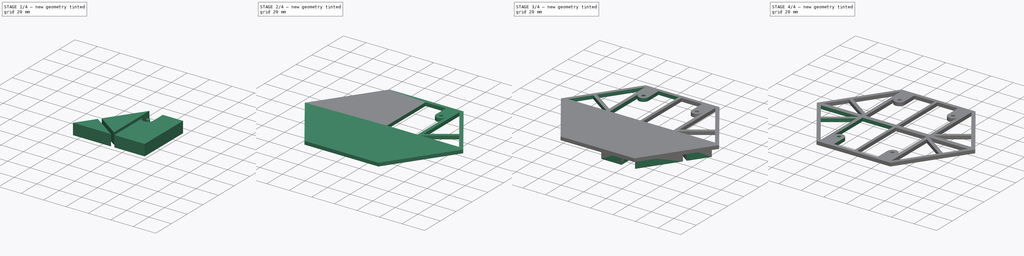
[diagram: build sequence overview — one tinted view per stage of 4, left to right]
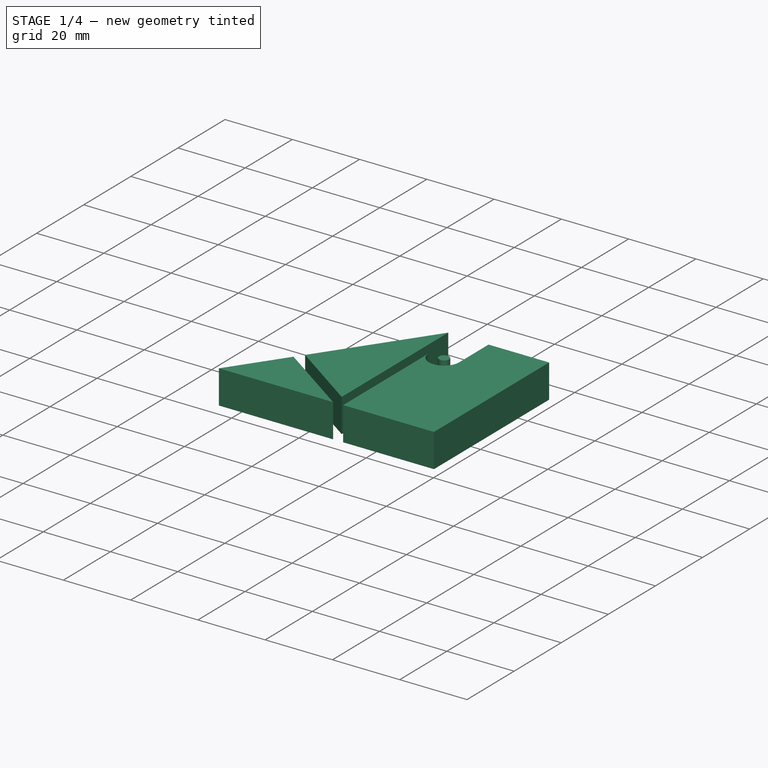
[diagram: stage 1 of 4 — iso view after this stage's code; geometry added in this stage tinted green]
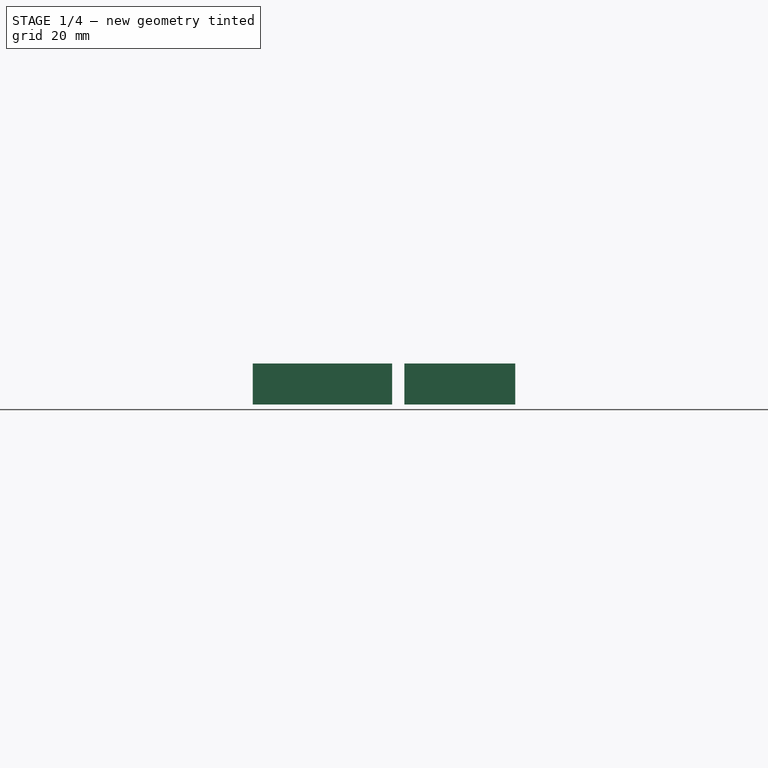
[diagram: stage 1 of 4 — front view after this stage's code; geometry added in this stage tinted green]
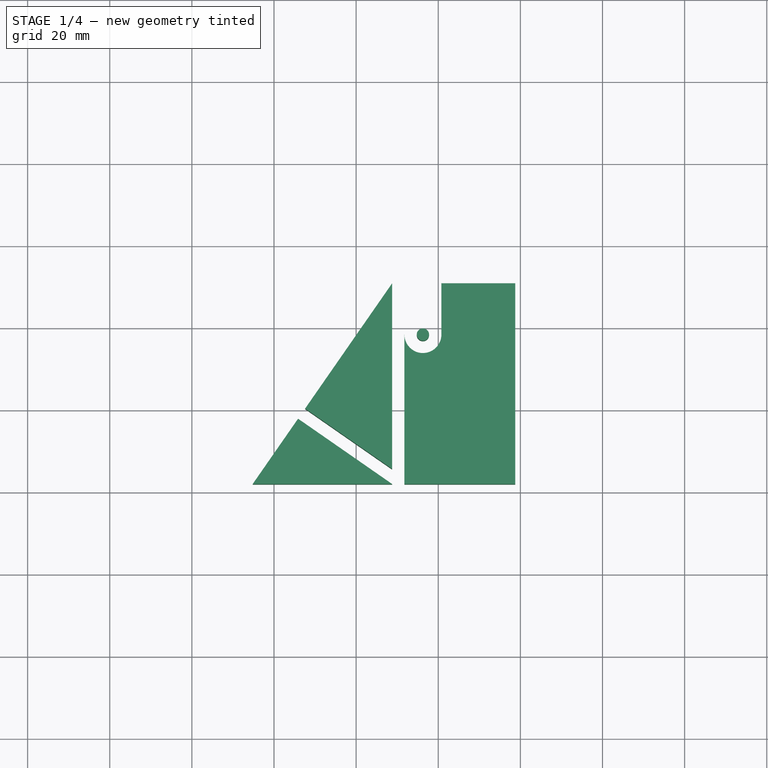
[diagram: stage 1 of 4 — top view after this stage's code; geometry added in this stage tinted green]
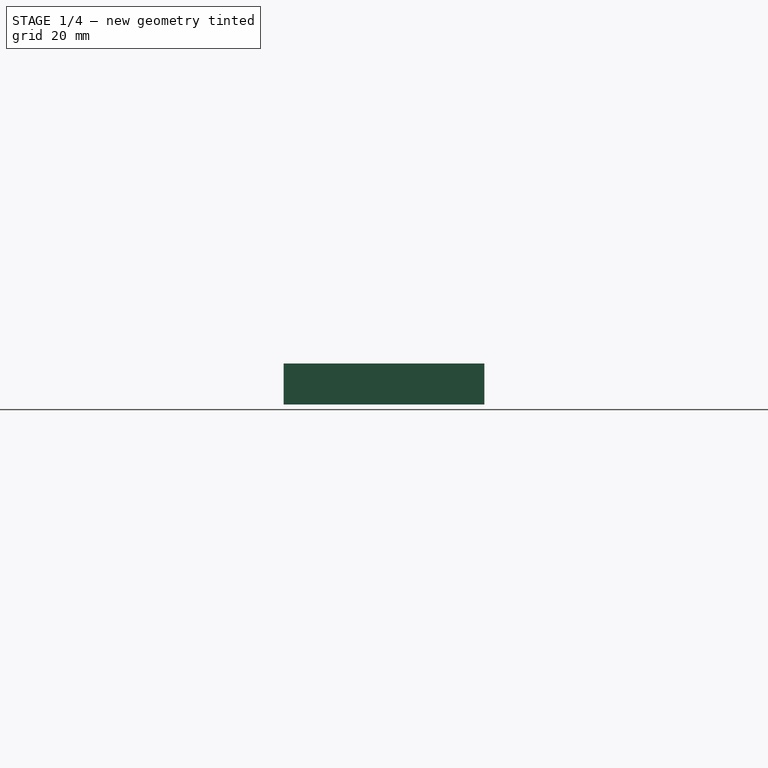
[diagram: stage 1 of 4 — right view after this stage's code; geometry added in this stage tinted green]
FCSTD DOCUMENT  (FreeCAD 0.17R13541 (Git))
Label: rubber_suspension
License: All rights reserved
LicenseURL: http://en.wikipedia.org/wiki/All_rights_reserved
objects: Part::Cut×4, Part::Mirroring×3, Sketcher::SketchObject×2, Part::Extrusion×2, Spreadsheet::Sheet×1
note: 11 computed .brp shape members not serialized (recipe doc carries the construction recipe); baked Part::Feature solids carry a one-line shape summary decoded from their .brp

FEATURE [Sketcher::SketchObject] Sketch
  expr: Constraints[15] = Spreadsheet.triangle_side
  sketch-geometry (6):
    g0: LineSegment StartX=-32.8 StartY=53.88 StartZ=0 EndX=32.8 EndY=53.88 EndZ=0
    g1: LineSegment StartX=-32.8 StartY=-53.88 StartZ=0 EndX=32.8 EndY=-53.88 EndZ=0
    g2: LineSegment StartX=-32.8 StartY=53.88 StartZ=0 EndX=-70.2207 EndY=0 EndZ=0
    g3: LineSegment StartX=-32.8 StartY=-53.88 StartZ=0 EndX=-70.2207 EndY=0 EndZ=0
    g4: LineSegment StartX=32.8 StartY=-53.88 StartZ=0 EndX=70.2207 EndY=0 EndZ=0
    g5: LineSegment StartX=32.8 StartY=53.88 StartZ=0 EndX=70.2207 EndY=0 EndZ=0
  constraints (18):
    c: Horizontal(g0)
    c: Horizontal(g1)
    c: Coincident(g2,g0)
    c: Coincident(g3,g1)
    c: Coincident(g3,g2)
    c: Coincident(g4,g1)
    c: Coincident(g5,g0)
    c: Coincident(g5,g4)
    c: Equal(g1,g3)
    c: Equal(g3,g2)
    c: Equal(g2,g0)
    c: Equal(g0,g5)
    c: Equal(g5,g4)
    c: Symmetric(g0,g0,g-2)
    c: Symmetric(g1,g1,g-2)
    c: Distance(g0) = 65.6
    c: Horizontal(g2,g-1)
    c: Distance(g0,g1) = 107.76
FEATURE [Spreadsheet::Sheet] Spreadsheet
  cells = A1=Triangle Side; B1(triangle_side)==65.599999999999994mm; A4=PCB Width; B4(PCB_Width)==55mm; A5=PCB Length; B5(PCB_LENGTH)==B4 * 1.6180000000000001
FEATURE [Part::Extrusion] Extrude
  Base = -> Sketch
  Dir = (0,0,1)
  DirMode = 2
  FaceMakerClass = Part::FaceMakerBullseye
  LengthFwd = 3
  LengthRev = 0
  Solid = true
  Symmetric = false
FEATURE [Sketcher::SketchObject] Sketch001
  ExternalGeometry = -> [Extrude]
  MapMode = 5
  Placement = pos=(0,0,3) rot=(0,0,1;0rad)
  Support = -> [Extrude]
  expr: Constraints[15] = Spreadsheet.PCB_LENGTH
  expr: Constraints[14] = Spreadsheet.PCB_Width
  sketch-geometry (28):
    g0: LineSegment [constr] StartX=-27.5 StartY=44.495 StartZ=0 EndX=27.5 EndY=44.495 EndZ=0
    g1: LineSegment [constr] StartX=27.5 StartY=44.495 StartZ=0 EndX=27.5 EndY=-44.495 EndZ=0
    g2: LineSegment [constr] StartX=27.5 StartY=-44.495 StartZ=0 EndX=-27.5 EndY=-44.495 EndZ=0
    g3: LineSegment [constr] StartX=-27.5 StartY=-44.495 StartZ=0 EndX=-27.5 EndY=44.495 EndZ=0
    g4: LineSegment [constr] StartX=-27.5 StartY=44.495 StartZ=0 EndX=0 EndY=0 EndZ=0
    g5: LineSegment [constr] StartX=27.5 StartY=-44.495 StartZ=0 EndX=0 EndY=0 EndZ=0
    g6: LineSegment StartX=-65.1791 StartY=2 StartZ=0 EndX=-54.1324 EndY=17.9055 EndZ=0
    g7: LineSegment StartX=-54.1324 StartY=17.9055 StartZ=0 EndX=-31.231 EndY=2 EndZ=0
    g8: LineSegment StartX=-65.1791 StartY=2 StartZ=0 EndX=-31.231 EndY=2 EndZ=0
    g9: LineSegment StartX=-31.231 StartY=5.65256 StartZ=0 EndX=-52.4211 EndY=20.3695 EndZ=0
    g10: LineSegment StartX=-31.231 StartY=5.65256 StartZ=0 EndX=-31.231 EndY=50.88 EndZ=0
    g11: LineSegment StartX=-52.4211 StartY=20.3695 StartZ=0 EndX=-31.231 EndY=50.88 EndZ=0
    g12: LineSegment StartX=-28.231 StartY=38.3967 StartZ=0 EndX=-28.231 EndY=2 EndZ=0
    g13: LineSegment StartX=-28.231 StartY=2 StartZ=0 EndX=-1.23609 EndY=2 EndZ=0
    g14: LineSegment StartX=-1.23609 StartY=2 StartZ=0 EndX=-1.23609 EndY=50.88 EndZ=0
    g15: LineSegment StartX=-19.231 StartY=50.88 StartZ=0 EndX=-1.23609 EndY=50.88 EndZ=0
    g16: Circle CenterX=-23.731 CenterY=38.3967 CenterZ=0 NormalX=0 NormalY=0 NormalZ=1 AngleXU=0 Radius=1.5
    g17: ArcOfCircle CenterX=-23.731 CenterY=38.3967 CenterZ=0 NormalX=0 NormalY=0 NormalZ=1 AngleXU=0 Radius=4.5 StartAngle=3.14159 EndAngle=6.28318
    g18: LineSegment StartX=-19.231 StartY=50.88 StartZ=0 EndX=-19.231 EndY=38.3967 EndZ=0
    g19: LineSegment [constr] StartX=-31.231 StartY=5.65256 StartZ=0 EndX=-31.231 EndY=2 EndZ=0
    g20: LineSegment [constr] StartX=-54.1324 StartY=17.9055 StartZ=0 EndX=-52.4211 EndY=20.3695 EndZ=0
    g21: LineSegment [constr] StartX=-31.231 StartY=50.88 StartZ=0 EndX=-33.695 EndY=52.5913 EndZ=0
    g22: LineSegment [constr] StartX=-28.231 StartY=38.3967 StartZ=0 EndX=-31.231 EndY=38.3967 EndZ=0
    g23: LineSegment [constr] StartX=-19.231 StartY=50.88 StartZ=0 EndX=-19.231 EndY=53.88 EndZ=0
    g24: LineSegment [constr] StartX=-28.231 StartY=2 StartZ=0 EndX=-31.231 EndY=2 EndZ=0
    g25: LineSegment [constr] StartX=-31.231 StartY=2 StartZ=0 EndX=-31.231 EndY=0 EndZ=0
    g26: LineSegment [constr] StartX=-31.231 StartY=50.88 StartZ=0 EndX=-19.231 EndY=50.88 EndZ=0
    g27: LineSegment [constr] StartX=-28.231 StartY=38.3967 StartZ=0 EndX=-23.731 EndY=38.3967 EndZ=0
  constraints (78):
    c: Coincident(g0,g1)
    c: Coincident(g1,g2)
    c: Coincident(g2,g3)
    c: Coincident(g3,g0)
    c: Horizontal(g0)
    c: Horizontal(g2)
    c: Vertical(g1)
    c: Vertical(g3)
    c: Coincident(g4,g0)
    c: Coincident(g4,g-1)
    c: Coincident(g5,g1)
    c: Coincident(g5,g-1)
    c: Equal(g4,g5)
    c: Parallel(g4,g5)
    c: Distance(g0) = 55
    c: Distance(g3) = 88.99
    c: Coincident(g8,g7)
    c: Horizontal(g8)
    c: Vertical(g10)
    c: Coincident(g11,g9)
    c: Coincident(g11,g10)
    c: Vertical(g12)
    c: Horizontal(g13)
    c: Coincident(g14,g13)
    c: Vertical(g14)
    c: Coincident(g15,g14)
    c: PointOnObject(g16,g4)
    c: Coincident(g17,g12)
    c: Coincident(g18,g17)
    c: Vertical(g18)
    c: Coincident(g13,g12)
    c: Coincident(g8,g6)
    c: Parallel(g11,g6)
    c: Coincident(g6,g7)
    c: Coincident(g9,g10)
    c: Tangent(g17,g18)
    c: Parallel(g-3,g6)
    c: Perpendicular(g-3,g7)
    c: Parallel(g7,g9)
    c: Coincident(g19,g9)
    c: Coincident(g19,g7)
    c: Vertical(g19)
    c: Coincident(g20,g6)
    c: Coincident(g20,g9)
    c: Parallel(g20,g6)
    c: Coincident(g21,g10)
    c: PointOnObject(g21,g-3)
    c: Perpendicular(g-3,g21)
    c: Equal(g21,g20)
    c: PointOnObject(g22,g12)
    c: PointOnObject(g22,g10)
    c: Perpendicular(g10,g22)
    c: Equal(g22,g20)
    c: Coincident(g23,g15)
    c: PointOnObject(g23,g-8)
    c: Vertical(g23)
    c: Equal(g23,g21)
    c: Coincident(g18,g15)
    c: Horizontal(g15)
    c: Coincident(g24,g12)
    c: Coincident(g24,g7)
    c: Horizontal(g24)
    c: Coincident(g17,g16)
    c: PointOnObject(g13,g4)
    c: Distance(g23) = 3
    c: Coincident(g25,g7)
    c: Vertical(g25)
    c: PointOnObject(g25,g-1)
    c: Distance(g25) = 2
    c: Radius(g16) = 1.5
    c: Distance(g16,g17) = 4.5
    c: Coincident(g26,g10)
    c: Coincident(g26,g15)
    c: Horizontal(g26)
    c: Coincident(g27,g12)
    c: Horizontal(g27)
    c: Coincident(g27,g16)
    c: Coincident(g22,g12)
FEATURE [Part::Extrusion] Extrude001
  Base = -> Sketch001
  Dir = (0,0,1)
  DirMode = 2
  FaceMakerClass = Part::FaceMakerBullseye
  LengthFwd = -10
  LengthRev = 0
  Solid = true
  Symmetric = false
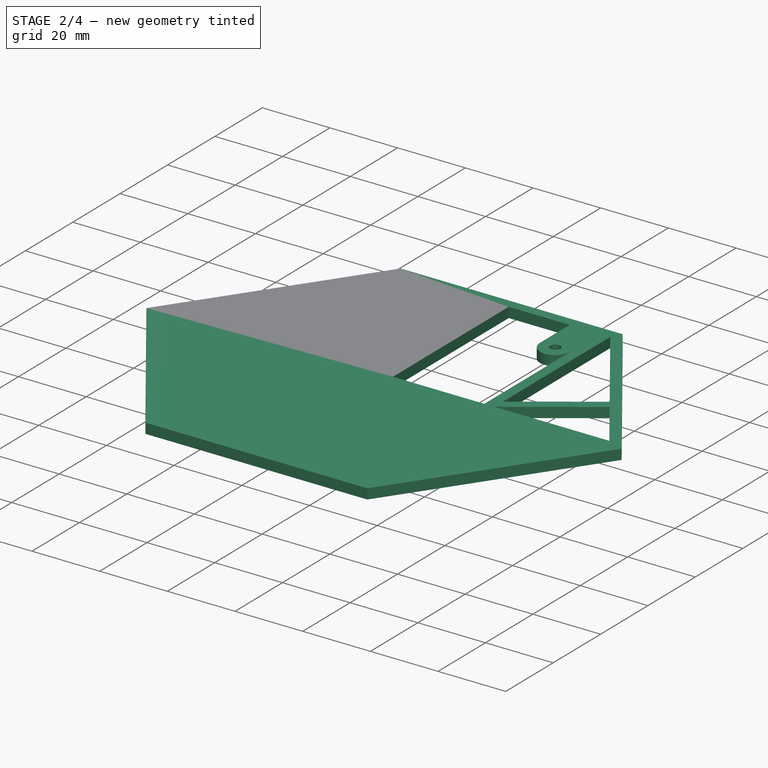
[diagram: stage 2 of 4 — iso view after this stage's code; geometry added in this stage tinted green]
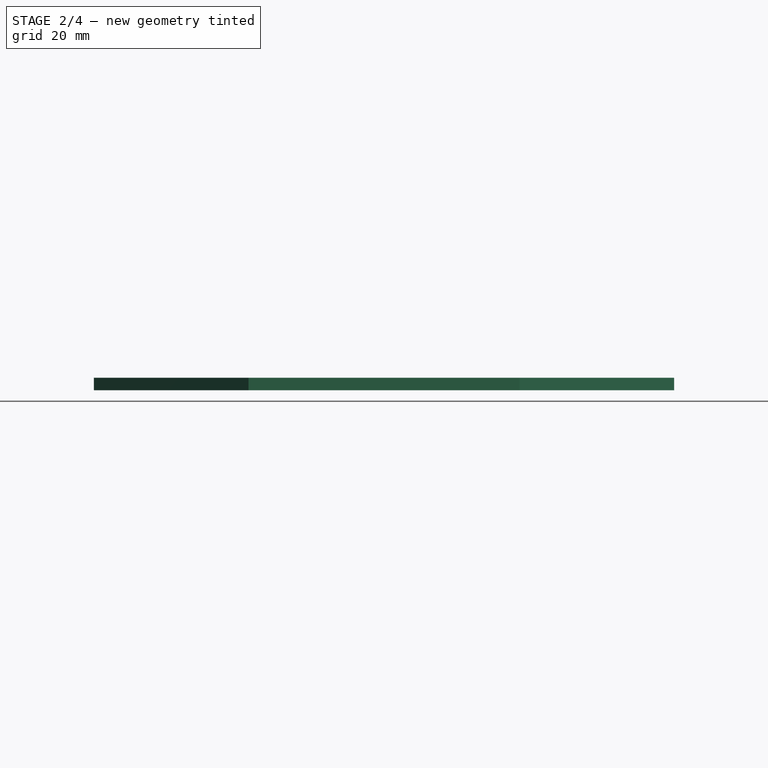
[diagram: stage 2 of 4 — front view after this stage's code; geometry added in this stage tinted green]
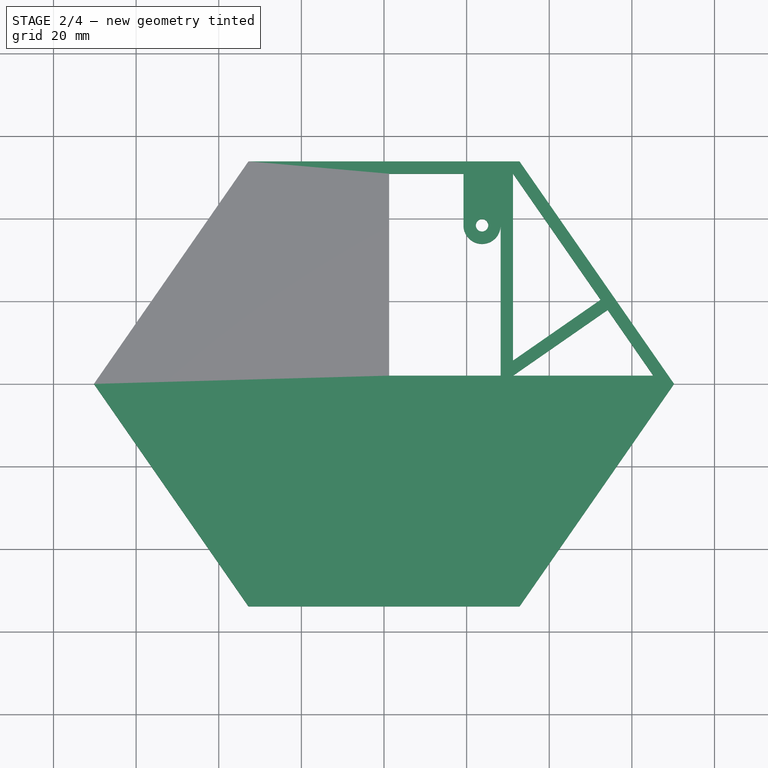
[diagram: stage 2 of 4 — top view after this stage's code; geometry added in this stage tinted green]
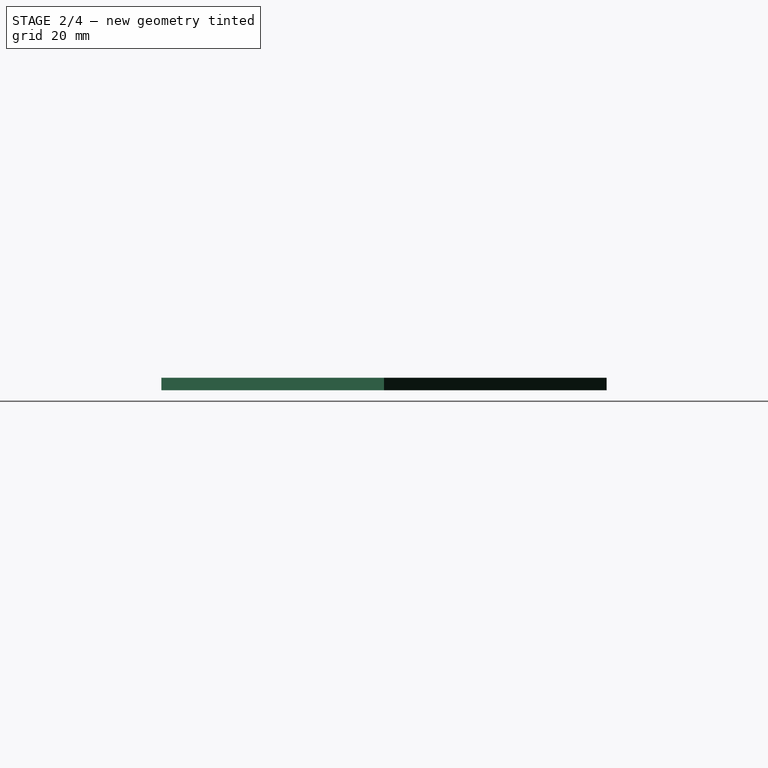
[diagram: stage 2 of 4 — right view after this stage's code; geometry added in this stage tinted green]
FEATURE [Part::Mirroring] Part__Mirroring002  label="Extrude001 (Mirror #3)"
  Base = (0,0,0)
  Normal = (1,0,0)
  Source = -> Extrude001
FEATURE [Part::Cut] Cut
  Base = -> Extrude
  Tool = -> Part__Mirroring002
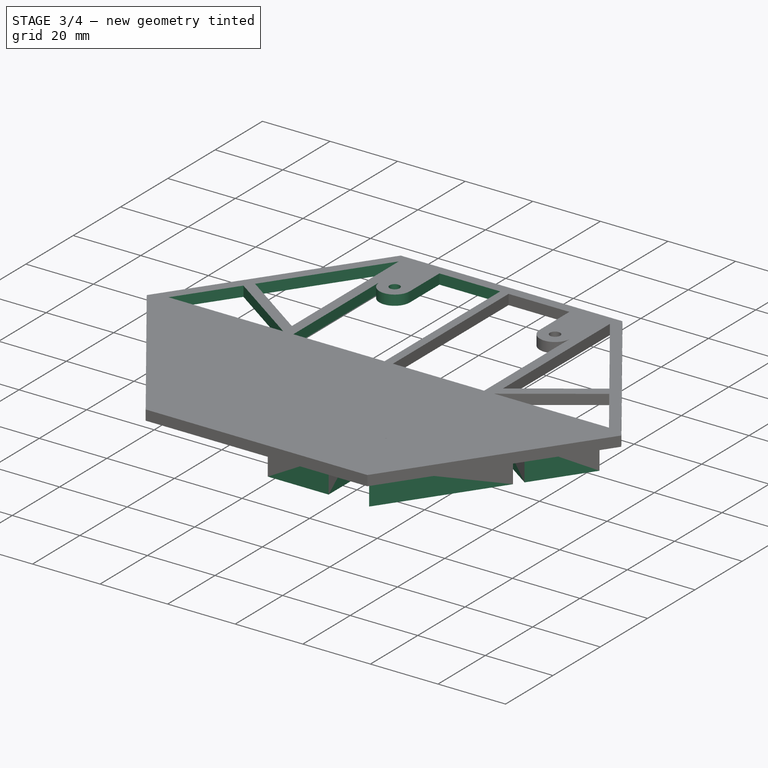
[diagram: stage 3 of 4 — iso view after this stage's code; geometry added in this stage tinted green]
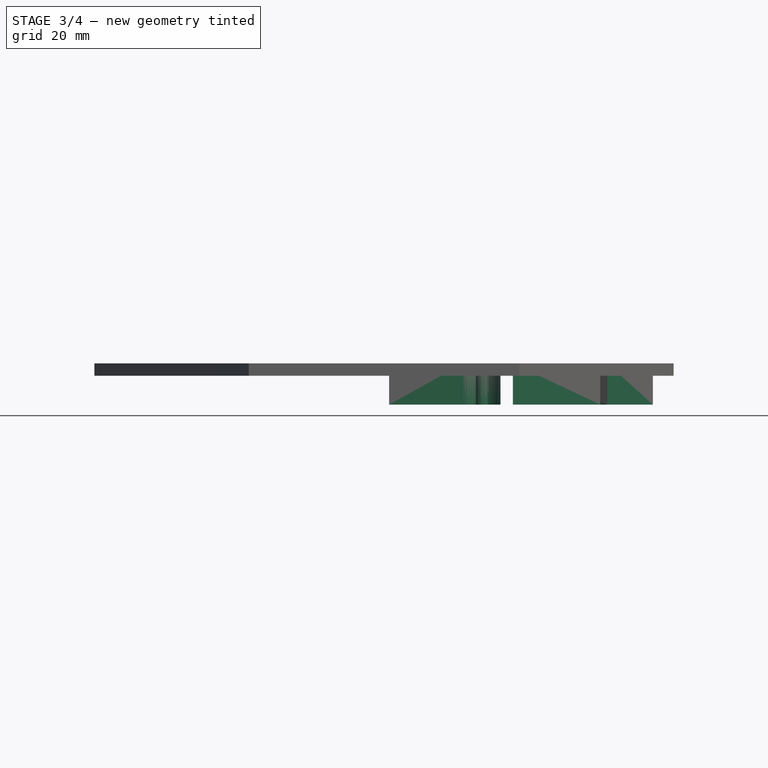
[diagram: stage 3 of 4 — front view after this stage's code; geometry added in this stage tinted green]
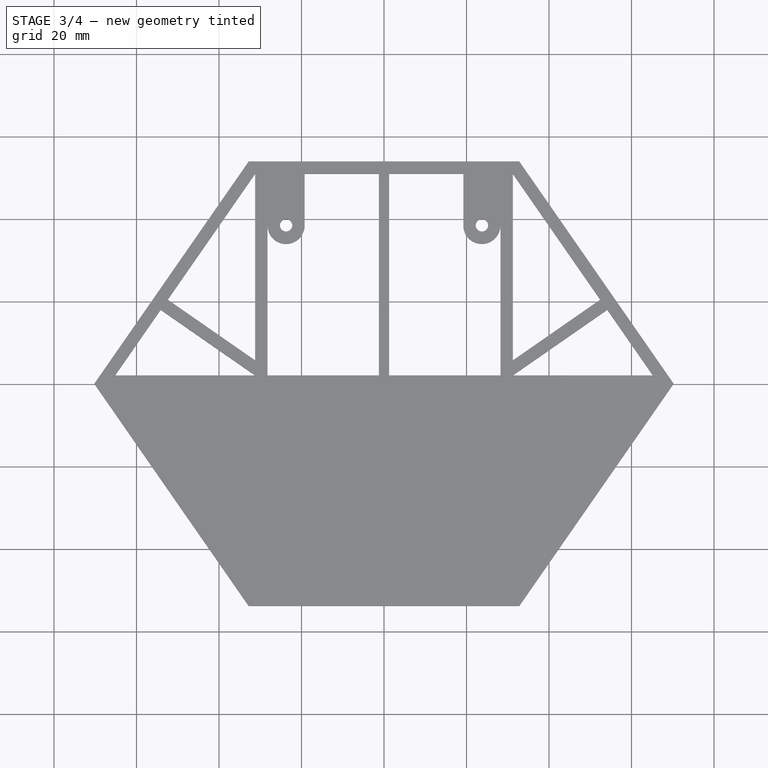
[diagram: stage 3 of 4 — top view after this stage's code; geometry added in this stage tinted green]
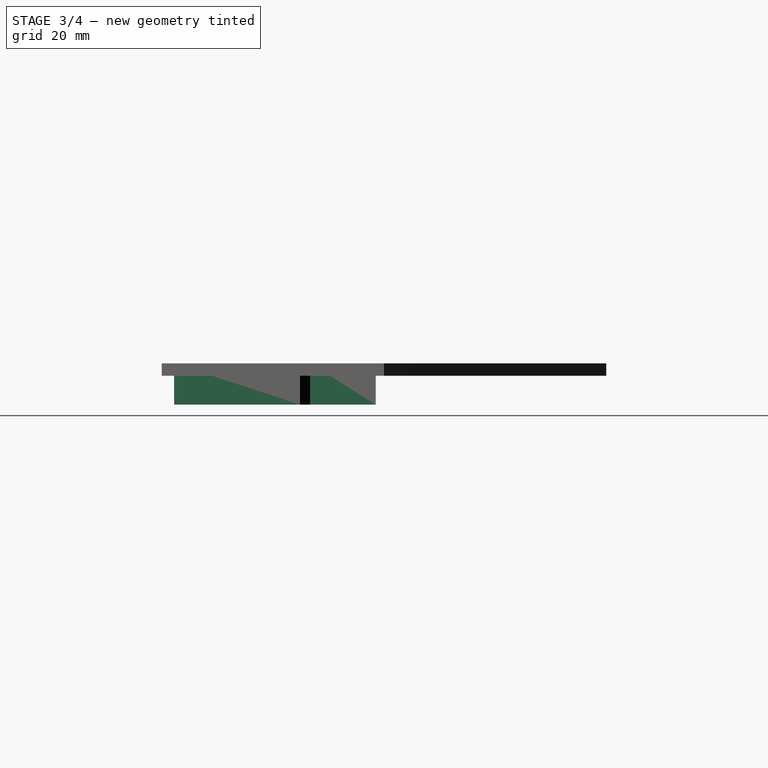
[diagram: stage 3 of 4 — right view after this stage's code; geometry added in this stage tinted green]
FEATURE [Part::Mirroring] Part__Mirroring  label="Extrude001 (Mirror #1)"
  Base = (0,0,0)
  Normal = (0,1,0)
  Source = -> Extrude001
FEATURE [Part::Mirroring] Part__Mirroring001  label="Extrude001 (Mirror #2)"
  Base = (0,0,0)
  Normal = (1,0,0)
  Source = -> Part__Mirroring
FEATURE [Part::Cut] Cut001
  Base = -> Cut
  Tool = -> Extrude001
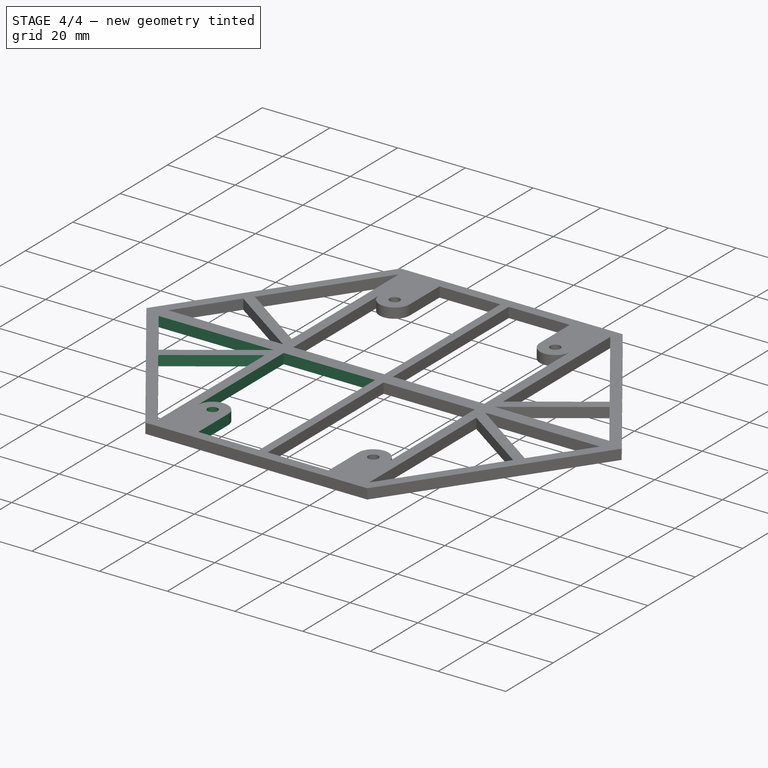
[diagram: stage 4 of 4 — iso view after this stage's code; geometry added in this stage tinted green]
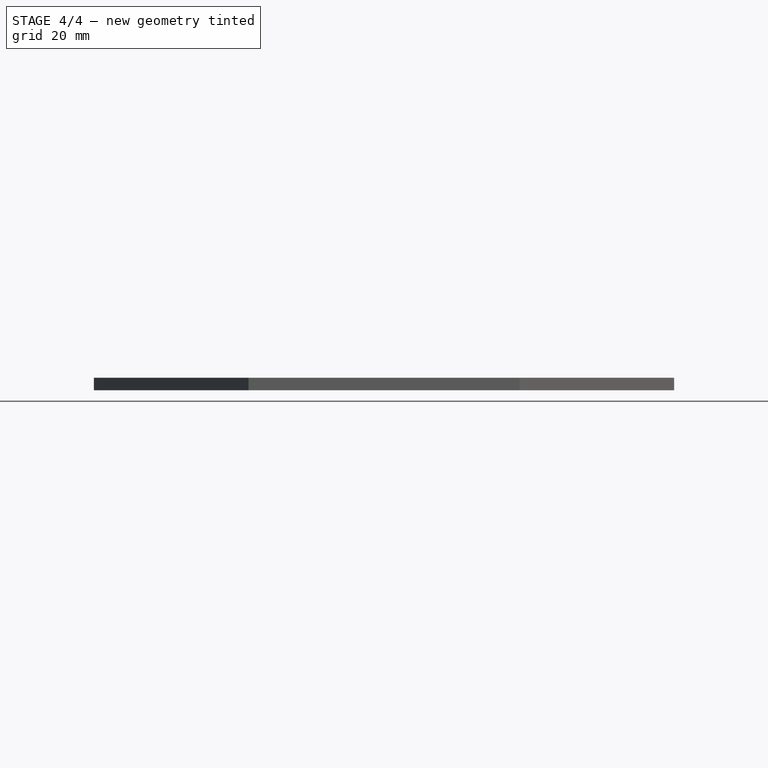
[diagram: stage 4 of 4 — front view after this stage's code; geometry added in this stage tinted green]
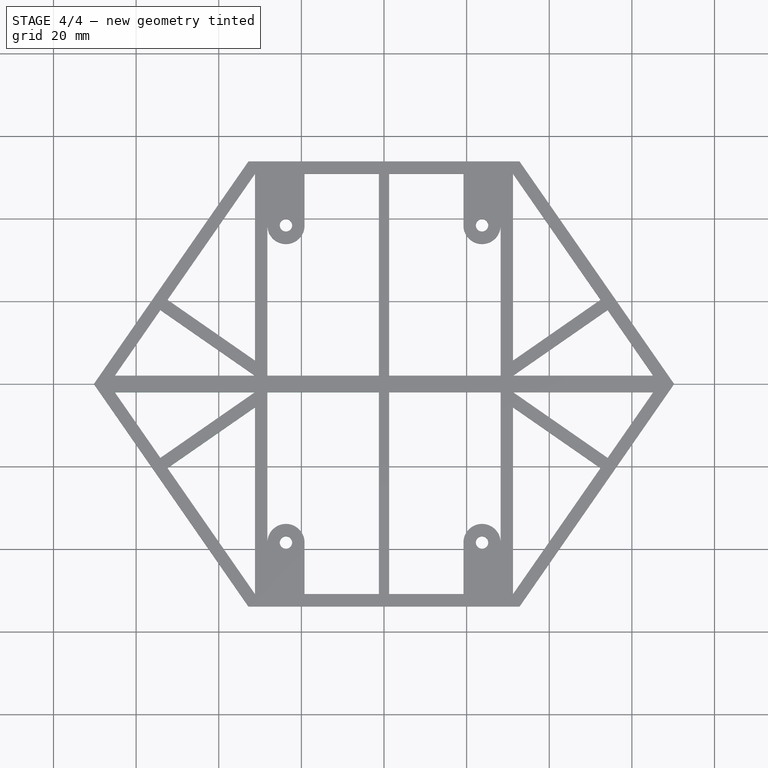
[diagram: stage 4 of 4 — top view after this stage's code; geometry added in this stage tinted green]
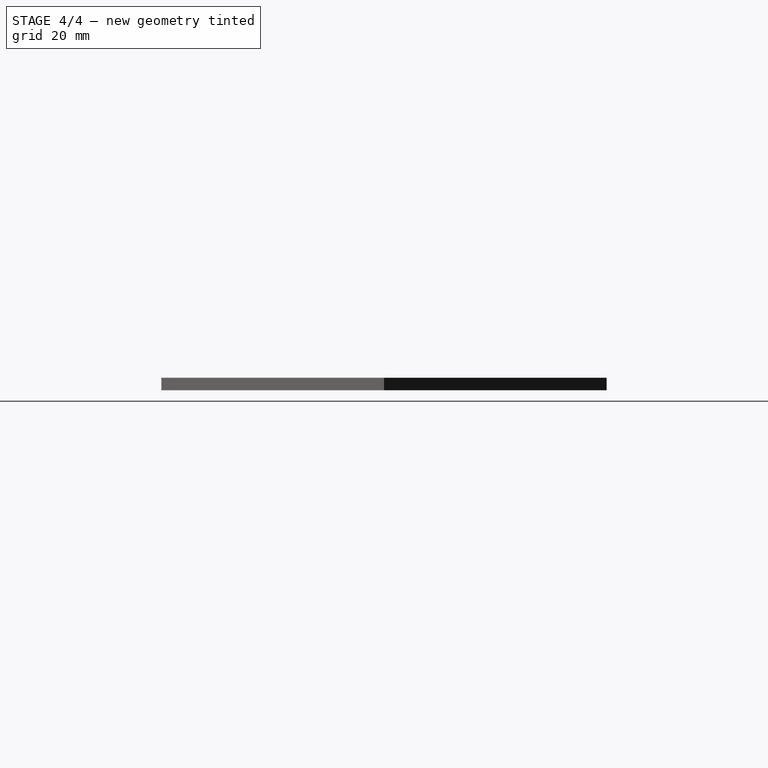
[diagram: stage 4 of 4 — right view after this stage's code; geometry added in this stage tinted green]
FEATURE [Part::Cut] Cut002
  Base = -> Cut001
  Tool = -> Part__Mirroring001
FEATURE [Part::Cut] Cut003
  Base = -> Cut002
  Tool = -> Part__Mirroring
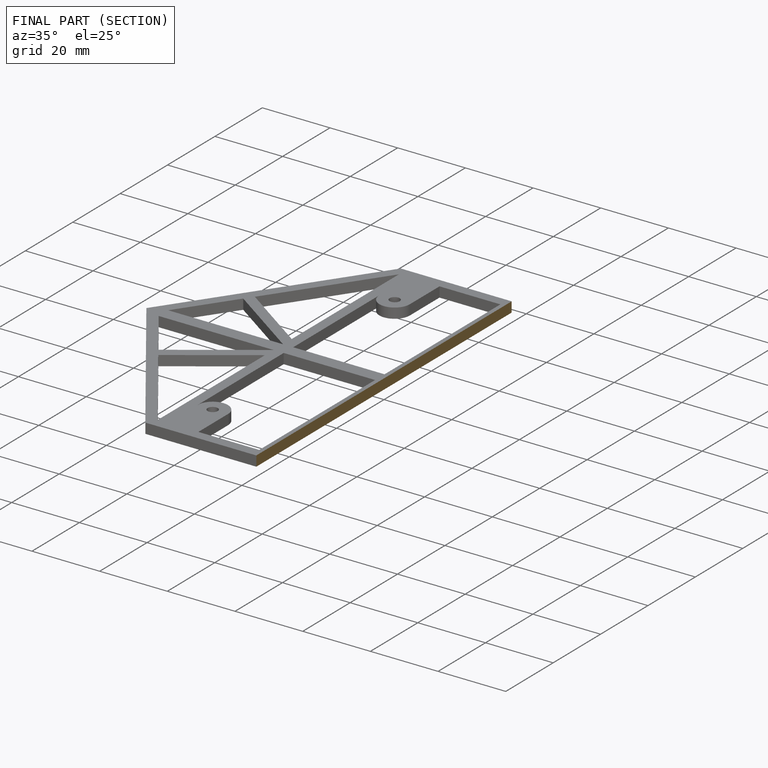
[diagram: finished part — half-section view (interior)]
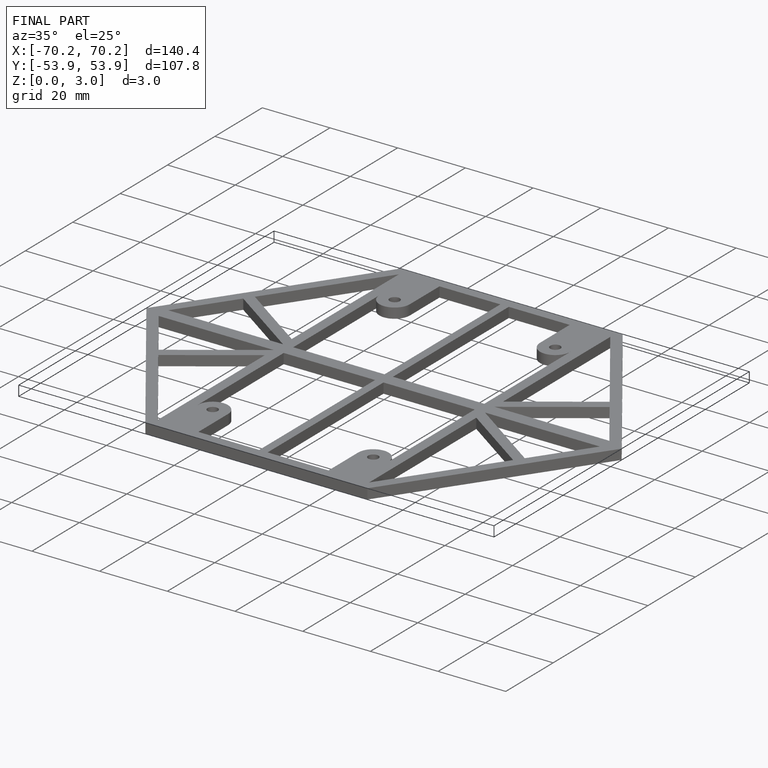
[diagram: finished part — iso view with bounding-box wireframe]
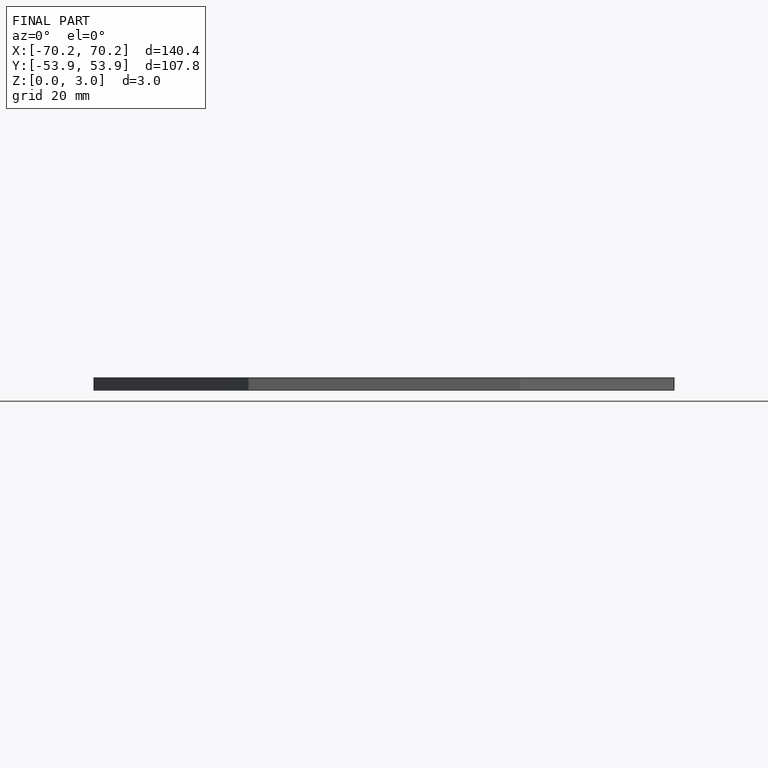
[diagram: finished part — front view with bounding-box wireframe]
